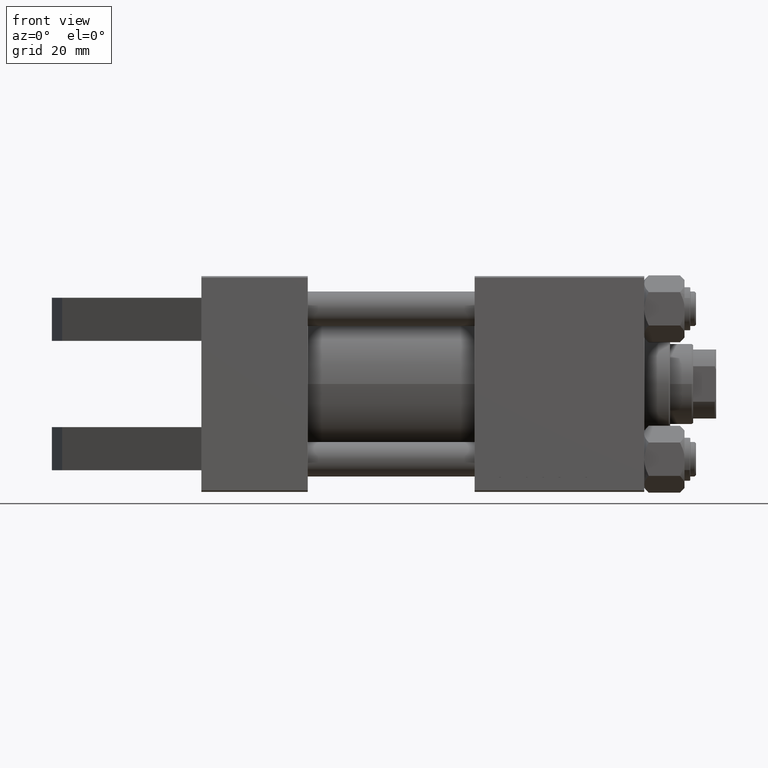
[diagram: clean part render]
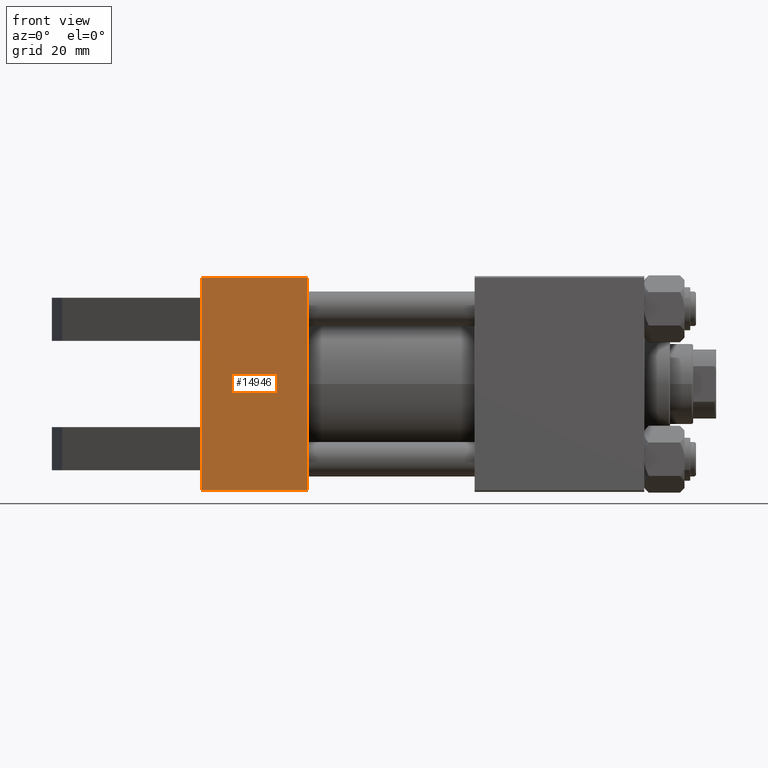
[diagram: same view with one face highlighted and labeled with its STEP entity id]
A machine part, front view. The second image highlights one B-rep face of the part: STEP entity #14946.
In plain terms, the highlighted planar face has unit normal (0, -1, -0).
Its self-contained STEP definition (entity closure, byte-faithful):
#1293 = LINE ( 'NONE', #47012, #45439 ) ;
#2194 = EDGE_CURVE ( 'NONE', #24202, #12382, #3703, .T. ) ;
#2260 = VERTEX_POINT ( 'NONE', #42885 ) ;
#2518 = CARTESIAN_POINT ( 'NONE',  ( 0.000000000000000000, 30.00000000000000000, -37.50000000000000711 ) ) ;
#3362 = DIRECTION ( 'NONE',  ( 0.000000000000000000, -1.000000000000000000, -9.251858538542972814E-17 ) ) ;
#3703 = LINE ( 'NONE', #30314, #31583 ) ;
#4451 = VERTEX_POINT ( 'NONE', #13694 ) ;
#4509 = ORIENTED_EDGE ( 'NONE', *, *, #13875, .F. ) ;
#5732 = LINE ( 'NONE', #25052, #20071 ) ;
#5860 = VERTEX_POINT ( 'NONE', #37251 ) ;
#6839 = ORIENTED_EDGE ( 'NONE', *, *, #34925, .T. ) ;
#7732 = VECTOR ( 'NONE', #40121, 1000.000000000000000 ) ;
#8440 = DIRECTION ( 'NONE',  ( -1.000000000000000000, 0.000000000000000000, 0.000000000000000000 ) ) ;
#11002 = DIRECTION ( 'NONE',  ( 0.000000000000000000, -1.000000000000000000, -9.251858538542972814E-17 ) ) ;
#11074 = DIRECTION ( 'NONE',  ( 0.000000000000000000, -1.000000000000000000, -9.251858538542972814E-17 ) ) ;
#12382 = VERTEX_POINT ( 'NONE', #22423 ) ;
#12678 = PLANE ( 'NONE',  #26209 ) ;
#13052 = CARTESIAN_POINT ( 'NONE',  ( 0.000000000000000000, 36.99999999999997868, -37.50000000000000000 ) ) ;
#13652 = ORIENTED_EDGE ( 'NONE', *, *, #16110, .F. ) ;
#13694 = CARTESIAN_POINT ( 'NONE',  ( 37.00000000000000000, 36.99999999999997868, -37.50000000000000000 ) ) ;
#13875 = EDGE_CURVE ( 'NONE', #22234, #2260, #29985, .T. ) ;
#14946 = ADVANCED_FACE ( 'NONE', ( #35761 ), #12678, .T. ) ;
#16110 = EDGE_CURVE ( 'NONE', #5860, #26216, #18599, .T. ) ;
#16855 = DIRECTION ( 'NONE',  ( 0.000000000000000000, -1.000000000000000000, -9.251858538542972814E-17 ) ) ;
#16924 = CARTESIAN_POINT ( 'NONE',  ( 37.00000000000000000, 37.49999999999999289, -37.50000000000000000 ) ) ;
#18398 = ORIENTED_EDGE ( 'NONE', *, *, #42812, .F. ) ;
#18582 = EDGE_LOOP ( 'NONE', ( #4509, #38478, #6839, #41070, #13652, #19095, #34957, #18398 ) ) ;
#18599 = LINE ( 'NONE', #45468, #19065 ) ;
#18628 = CARTESIAN_POINT ( 'NONE',  ( 0.000000000000000000, 15.00000000000000000, -37.50000000000000000 ) ) ;
#18929 = CARTESIAN_POINT ( 'NONE',  ( 0.000000000000000000, -37.00000000000002132, -37.50000000000000711 ) ) ;
#19065 = VECTOR ( 'NONE', #11074, 1000.000000000000000 ) ;
#19095 = ORIENTED_EDGE ( 'NONE', *, *, #35283, .T. ) ;
#19800 = VECTOR ( 'NONE', #3362, 1000.000000000000000 ) ;
#20071 = VECTOR ( 'NONE', #36613, 1000.000000000000000 ) ;
#20529 = VERTEX_POINT ( 'NONE', #37366 ) ;
#22234 = VERTEX_POINT ( 'NONE', #13052 ) ;
#22423 = CARTESIAN_POINT ( 'NONE',  ( 0.000000000000000000, -15.00000000000000000, -37.50000000000000711 ) ) ;
#23899 = VECTOR ( 'NONE', #44729, 1000.000000000000000 ) ;
#24202 = VERTEX_POINT ( 'NONE', #18628 ) ;
#24794 = CARTESIAN_POINT ( 'NONE',  ( 0.000000000000000000, -30.00000000000000000, -37.50000000000000711 ) ) ;
#25052 = CARTESIAN_POINT ( 'NONE',  ( 37.00000000000000000, 36.99999999999997868, -37.50000000000000000 ) ) ;
#26209 = AXIS2_PLACEMENT_3D ( 'NONE', #16924, #28954, #32219 ) ;
#26216 = VERTEX_POINT ( 'NONE', #18929 ) ;
#27369 = EDGE_CURVE ( 'NONE', #20529, #26216, #49140, .T. ) ;
#28954 = DIRECTION ( 'NONE',  ( 0.000000000000000000, 9.251858538542972814E-17, -1.000000000000000000 ) ) ;
#29985 = LINE ( 'NONE', #37036, #19800 ) ;
#30029 = CARTESIAN_POINT ( 'NONE',  ( 0.000000000000000000, -37.00000000000002132, -37.50000000000000711 ) ) ;
#30314 = CARTESIAN_POINT ( 'NONE',  ( 0.000000000000000000, 37.49999999999999289, -37.50000000000000000 ) ) ;
#31583 = VECTOR ( 'NONE', #11002, 1000.000000000000000 ) ;
#32219 = DIRECTION ( 'NONE',  ( 0.000000000000000000, 1.000000000000000000, 9.251858538542972814E-17 ) ) ;
#33309 = LINE ( 'NONE', #24794, #7732 ) ;
#34925 = EDGE_CURVE ( 'NONE', #4451, #20529, #1293, .T. ) ;
#34957 = ORIENTED_EDGE ( 'NONE', *, *, #2194, .F. ) ;
#35283 = EDGE_CURVE ( 'NONE', #5860, #12382, #33309, .T. ) ;
#35761 = FACE_OUTER_BOUND ( 'NONE', #18582, .T. ) ;
#36613 = DIRECTION ( 'NONE',  ( 1.000000000000000000, 0.000000000000000000, 0.000000000000000000 ) ) ;
#37036 = CARTESIAN_POINT ( 'NONE',  ( 0.000000000000000000, 37.49999999999999289, -37.50000000000000000 ) ) ;
#37251 = CARTESIAN_POINT ( 'NONE',  ( 0.000000000000000000, -30.00000000000000000, -37.50000000000000711 ) ) ;
#37366 = CARTESIAN_POINT ( 'NONE',  ( 37.00000000000000000, -37.00000000000002132, -37.50000000000000711 ) ) ;
#38478 = ORIENTED_EDGE ( 'NONE', *, *, #48020, .T. ) ;
#40121 = DIRECTION ( 'NONE',  ( -0.000000000000000000, 1.000000000000000000, -0.000000000000000000 ) ) ;
#40466 = VECTOR ( 'NONE', #8440, 1000.000000000000000 ) ;
#41070 = ORIENTED_EDGE ( 'NONE', *, *, #27369, .T. ) ;
#42812 = EDGE_CURVE ( 'NONE', #2260, #24202, #45213, .T. ) ;
#42885 = CARTESIAN_POINT ( 'NONE',  ( 0.000000000000000000, 30.00000000000000000, -37.50000000000000711 ) ) ;
#44729 = DIRECTION ( 'NONE',  ( -0.000000000000000000, -1.000000000000000000, -0.000000000000000000 ) ) ;
#45213 = LINE ( 'NONE', #2518, #23899 ) ;
#45439 = VECTOR ( 'NONE', #16855, 1000.000000000000000 ) ;
#45468 = CARTESIAN_POINT ( 'NONE',  ( 0.000000000000000000, 37.49999999999999289, -37.50000000000000000 ) ) ;
#47012 = CARTESIAN_POINT ( 'NONE',  ( 37.00000000000000000, 37.49999999999999289, -37.50000000000000000 ) ) ;
#48020 = EDGE_CURVE ( 'NONE', #22234, #4451, #5732, .T. ) ;
#49140 = LINE ( 'NONE', #30029, #40466 ) ;